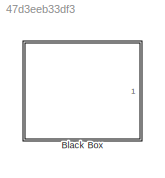
MODEL slx_47d3eeb33df3
KIND model
CONFIG AbsTol = auto
CONFIG EnableMultiTasking = on
CONFIG FixedStep = .015
CONFIG MaxStep = auto
CONFIG MinStep = auto
CONFIG RelTol = 1e-3
CONFIG SampleTimeConstraint = Unconstrained
CONFIG Solver = FixedStepAuto
CONFIG SolverName = FixedStepAuto
CONFIG StartTime = 0.0
CONFIG StopTime = inf
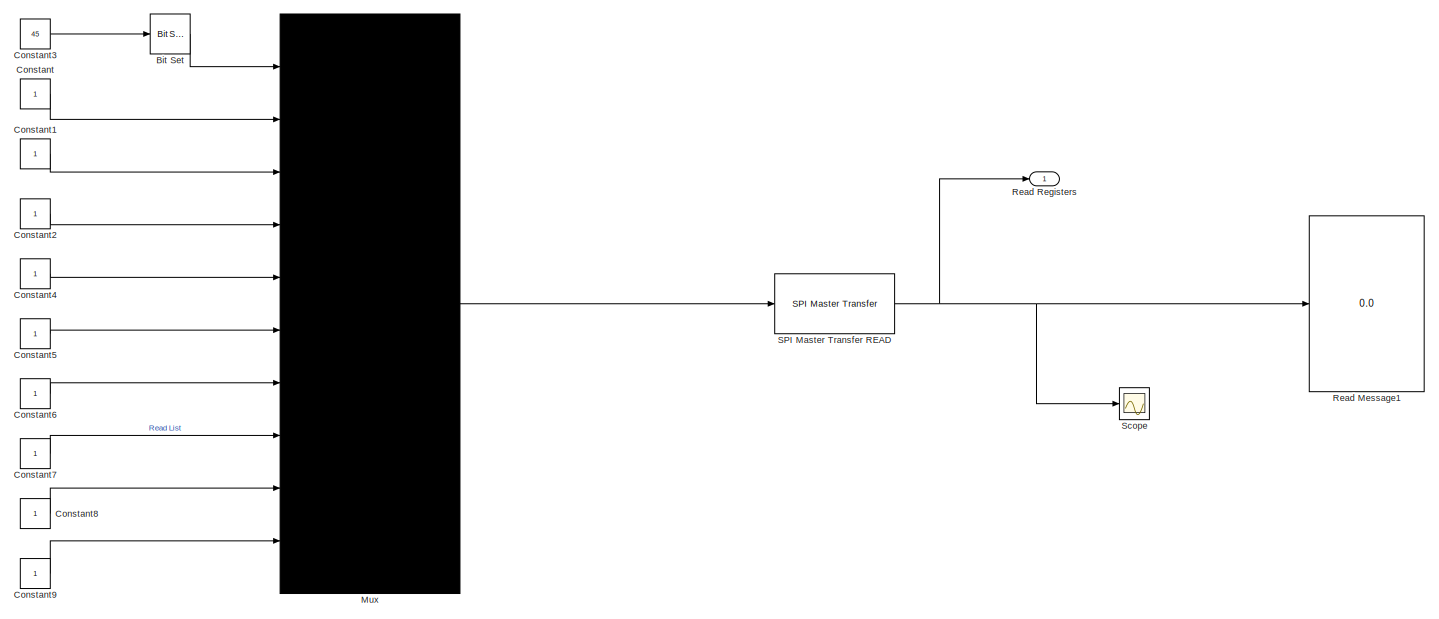
[diagram: Black Box - part 1/3, full width, top band]
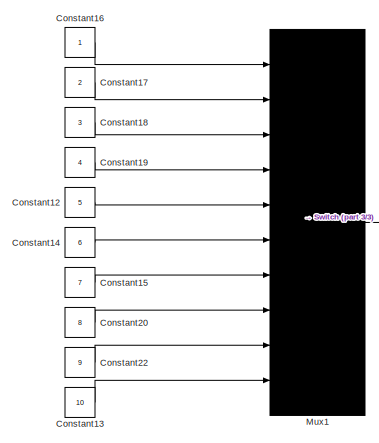
[diagram: Black Box - part 2/3, middle left region]
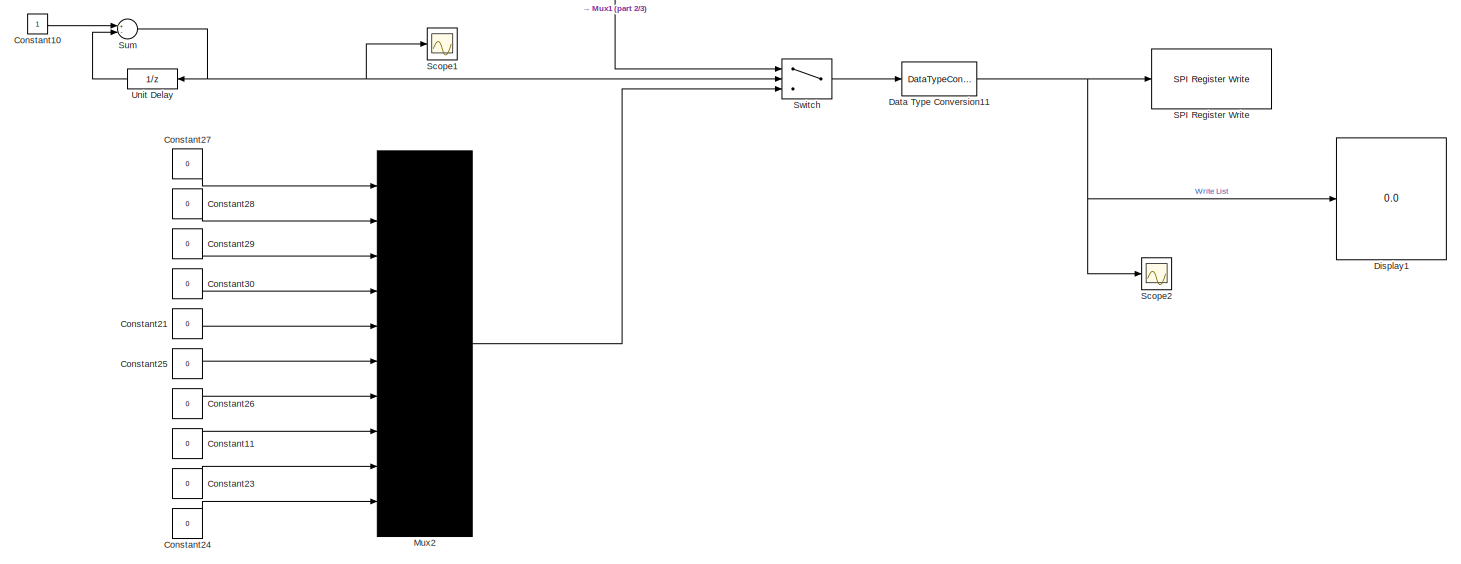
[diagram: Black Box - part 3/3, full width, bottom band]
BLOCK [SubSystem] Black Box
  Ports = [0, 1]
  RequestExecContextInheritance = off
BLOCK [Reference] Black Box/Bit Set  REF=simulink/Logic and Bit
Operations/Bit Set
  Ports = [1, 1]
  SourceBlock = simulink/Logic and Bit\nOperations/Bit Set
  SourceProductBaseCode = SL
  SourceProductName = Simulink
  SourceType = Bit Set
BLOCK [Constant] Black Box/Constant
  OutDataTypeStr = uint8
BLOCK [Constant] Black Box/Constant1
  OutDataTypeStr = uint8
BLOCK [Constant] Black Box/Constant10
BLOCK [Constant] Black Box/Constant11
  Value = 0
BLOCK [Constant] Black Box/Constant12
  Value = 5
BLOCK [Constant] Black Box/Constant13
  Value = 10
BLOCK [Constant] Black Box/Constant14
  Value = 6
BLOCK [Constant] Black Box/Constant15
  Value = 7
BLOCK [Constant] Black Box/Constant16
BLOCK [Constant] Black Box/Constant17
  Value = 2
BLOCK [Constant] Black Box/Constant18
  Value = 3
BLOCK [Constant] Black Box/Constant19
  Value = 4
BLOCK [Constant] Black Box/Constant2
  OutDataTypeStr = uint8
BLOCK [Constant] Black Box/Constant20
  Value = 8
BLOCK [Constant] Black Box/Constant21
  Value = 0
BLOCK [Constant] Black Box/Constant22
  Value = 9
BLOCK [Constant] Black Box/Constant23
  Value = 0
BLOCK [Constant] Black Box/Constant24
  Value = 0
BLOCK [Constant] Black Box/Constant25
  Value = 0
BLOCK [Constant] Black Box/Constant26
  Value = 0
BLOCK [Constant] Black Box/Constant27
  Value = 0
BLOCK [Constant] Black Box/Constant28
  Value = 0
BLOCK [Constant] Black Box/Constant29
  Value = 0
BLOCK [Constant] Black Box/Constant3
  OutDataTypeStr = uint8
  Value = 45
BLOCK [Constant] Black Box/Constant30
  Value = 0
BLOCK [Constant] Black Box/Constant4
  OutDataTypeStr = uint8
BLOCK [Constant] Black Box/Constant5
  OutDataTypeStr = uint8
BLOCK [Constant] Black Box/Constant6
  OutDataTypeStr = uint8
BLOCK [Constant] Black Box/Constant7
  OutDataTypeStr = uint8
BLOCK [Constant] Black Box/Constant8
  OutDataTypeStr = uint8
BLOCK [Constant] Black Box/Constant9
  OutDataTypeStr = uint8
BLOCK [DataTypeConversion] Black Box/Data Type Conversion11
  OutDataTypeStr = uint8
  RndMeth = Floor
BLOCK [Display] Black Box/Display1
  Decimation = 1
  Format = binary (Stored Integer)
  Ports = [1]
BLOCK [Mux] Black Box/Mux
  DisplayOption = signals
  Inputs = 10
  Ports = [10, 1]
BLOCK [Mux] Black Box/Mux1
  DisplayOption = signals
  Inputs = 10
  Ports = [10, 1]
BLOCK [Mux] Black Box/Mux2
  DisplayOption = signals
  Inputs = 10
  Ports = [10, 1]
BLOCK [Display] Black Box/Read Message1
  Decimation = 1
  Format = decimal (Stored Integer)
  Ports = [1]
BLOCK [Outport] Black Box/Read Registers
  IconDisplay = Port number
BLOCK [Reference] Black Box/SPI Master Transfer READ  REF=raspberrypilib/SPI Master Transfer
  Ports = [1, 1]
  SourceBlock = raspberrypilib/SPI Master Transfer
  SourceProductBaseCode = RASPPI
  SourceProductName = Simulink Support Package for Raspberry Pi Hardware
  SourceType = codertarget.raspi.internal.SPIMasterTransfer
BLOCK [Reference] Black Box/SPI Register Write  REF=raspberrypilib/SPI Register Write
  Ports = [1]
  SourceBlock = raspberrypilib/SPI Register Write
  SourceProductBaseCode = RASPPI
  SourceProductName = Simulink Support Package for Raspberry Pi Hardware
  SourceType = codertarget.raspi.internal.SPIRegisterWrite
BLOCK [Scope] Black Box/Scope
  Floating = off
  NumInputPorts = 1
  Ports = [1]
  ScopeSpecificationString = Simulink.scopes.TimeScopeBlockCfg('CurrentConfiguration', extmgr.ConfigurationSet(extmgr.Configuration('Core','General UI',true,'FigureColor',[0.941176470588235 0.941176470588235 0.941176470588235]),extmgr.Configuration('Core','Source UI',true),extmgr.Configuration('Sources','WiredSimulink',true,'DataLoggingVariableName','ScopeData1'),extmgr.Configuration('Visuals','Time Domain',true,'SerializedDi...<+2059ch>
BLOCK [Scope] Black Box/Scope1
  Floating = off
  NumInputPorts = 1
  Ports = [1]
  ScopeSpecificationString = Simulink.scopes.TimeScopeBlockCfg('CurrentConfiguration', extmgr.ConfigurationSet(extmgr.Configuration('Core','General UI',true),extmgr.Configuration('Core','Source UI',true),extmgr.Configuration('Sources','WiredSimulink',true,'DataLoggingVariableName','ScopeData1'),extmgr.Configuration('Visuals','Time Domain',true,'SerializedDisplays',{struct('MinYLimReal','-0.0289','MaxYLimReal','1.05743','YLabe...<+1446ch>
BLOCK [Scope] Black Box/Scope2
  Floating = off
  NumInputPorts = 1
  Ports = [1]
  ScopeSpecificationString = Simulink.scopes.TimeScopeBlockCfg('CurrentConfiguration', extmgr.ConfigurationSet(extmgr.Configuration('Core','General UI',true),extmgr.Configuration('Core','Source UI',true),extmgr.Configuration('Sources','WiredSimulink',true,'DataLoggingVariableName','ScopeData2'),extmgr.Configuration('Visuals','Time Domain',true,'SerializedDisplays',{struct('MinYLimReal','-0.0289','MaxYLimReal','1.05743','YLabe...<+1446ch>
BLOCK [Sum] Black Box/Sum
  Inputs = +-
  Ports = [2, 1]
BLOCK [Switch] Black Box/Switch
  Criteria = u2 > Threshold
  InputSameDT = off
  SaturateOnIntegerOverflow = off
BLOCK [UnitDelay] Black Box/Unit Delay
  SampleTime = -1
LINE Black Box/Bit Set:1 -> Black Box/Mux:1
LINE Black Box/Constant10:1 -> Black Box/Sum:1
LINE Black Box/Constant11:1 -> Black Box/Mux2:8
LINE Black Box/Constant12:1 -> Black Box/Mux1:5
LINE Black Box/Constant13:1 -> Black Box/Mux1:10
LINE Black Box/Constant14:1 -> Black Box/Mux1:6
LINE Black Box/Constant15:1 -> Black Box/Mux1:7
LINE Black Box/Constant16:1 -> Black Box/Mux1:1
LINE Black Box/Constant17:1 -> Black Box/Mux1:2
LINE Black Box/Constant18:1 -> Black Box/Mux1:3
LINE Black Box/Constant19:1 -> Black Box/Mux1:4
LINE Black Box/Constant1:1 -> Black Box/Mux:3
LINE Black Box/Constant20:1 -> Black Box/Mux1:8
LINE Black Box/Constant21:1 -> Black Box/Mux2:5
LINE Black Box/Constant22:1 -> Black Box/Mux1:9
LINE Black Box/Constant23:1 -> Black Box/Mux2:9
LINE Black Box/Constant24:1 -> Black Box/Mux2:10
LINE Black Box/Constant25:1 -> Black Box/Mux2:6
LINE Black Box/Constant26:1 -> Black Box/Mux2:7
LINE Black Box/Constant27:1 -> Black Box/Mux2:1
LINE Black Box/Constant28:1 -> Black Box/Mux2:2
LINE Black Box/Constant29:1 -> Black Box/Mux2:3
LINE Black Box/Constant2:1 -> Black Box/Mux:4
LINE Black Box/Constant30:1 -> Black Box/Mux2:4
LINE Black Box/Constant3:1 -> Black Box/Bit Set:1
LINE Black Box/Constant4:1 -> Black Box/Mux:5
LINE Black Box/Constant5:1 -> Black Box/Mux:6
LINE Black Box/Constant6:1 -> Black Box/Mux:7
LINE Black Box/Constant7:1 -> Black Box/Mux:8
LINE Black Box/Constant8:1 -> Black Box/Mux:9
LINE Black Box/Constant9:1 -> Black Box/Mux:10
LINE Black Box/Constant:1 -> Black Box/Mux:2
NET Black Box/Data Type Conversion11:1 -> Black Box/Display1:1, Black Box/SPI Register Write:1, Black Box/Scope2:1
LINE Black Box/Mux1:1 -> Black Box/Switch:1
LINE Black Box/Mux2:1 -> Black Box/Switch:3
LINE Black Box/Mux:1 -> Black Box/SPI Master Transfer READ:1
NET Black Box/SPI Master Transfer READ:1 -> Black Box/Read Message1:1, Black Box/Read Registers:1, Black Box/Scope:1
NET Black Box/Sum:1 -> Black Box/Scope1:1, Black Box/Switch:2, Black Box/Unit Delay:1
LINE Black Box/Switch:1 -> Black Box/Data Type Conversion11:1
LINE Black Box/Unit Delay:1 -> Black Box/Sum:2
note: NET lines group one-source signal fan-out (src -> all destinations, sorted); 1:1 wires keep LINE
